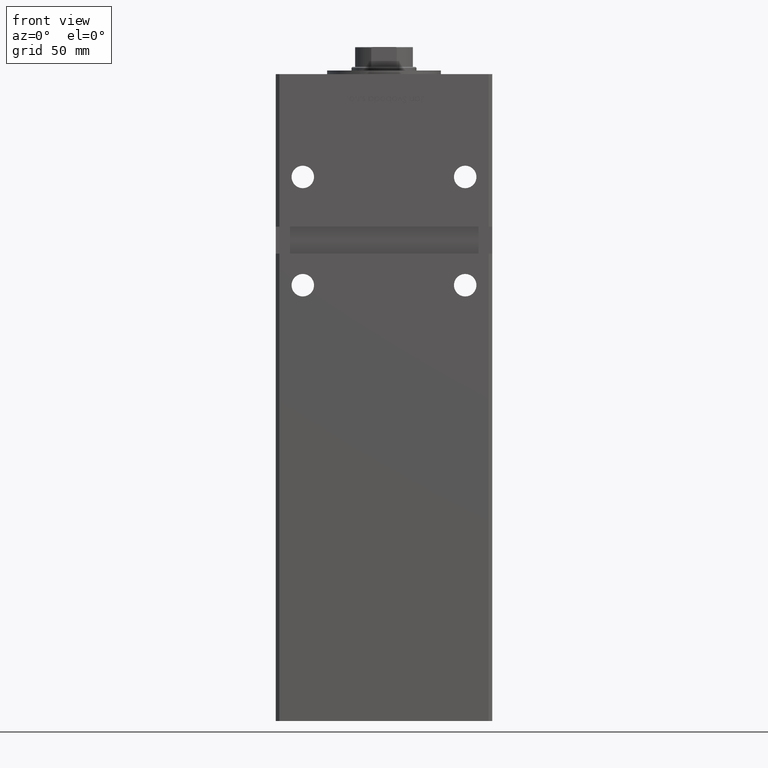
[diagram: clean part render]
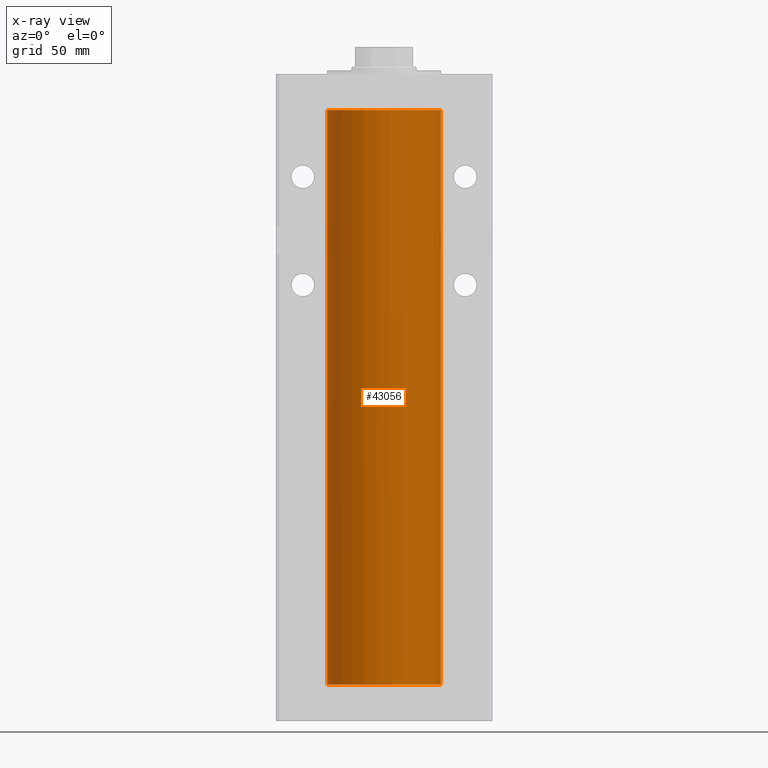
[diagram: x-ray — body ghosted, one internal face saturated and labeled with its STEP entity id]
A machine part, front view, then the same camera in x-ray: the body is ghosted and one INTERNAL B-rep face — a face not visible from any outside direction — is saturated and labeled: STEP entity #43056.
In plain terms, the highlighted cylindrical surface (partial cylindrical patch) has radius 31.5 mm, axis along (-0, -0, -1).
Its self-contained STEP definition (entity closure, byte-faithful):
#150 = CIRCLE ( 'NONE', #48139, 31.50000000000000000 ) ;
#186 = VERTEX_POINT ( 'NONE', #14479 ) ;
#3143 = FACE_OUTER_BOUND ( 'NONE', #34514, .T. ) ;
#3609 = CIRCLE ( 'NONE', #40334, 31.50000000000000000 ) ;
#4764 = VECTOR ( 'NONE', #32526, 1000.000000000000000 ) ;
#5274 = ORIENTED_EDGE ( 'NONE', *, *, #18313, .T. ) ;
#5793 = DIRECTION ( 'NONE',  ( -0.000000000000000000, 0.000000000000000000, 1.000000000000000000 ) ) ;
#7325 = LINE ( 'NONE', #36553, #4764 ) ;
#8102 = VECTOR ( 'NONE', #9469, 1000.000000000000000 ) ;
#9469 = DIRECTION ( 'NONE',  ( -0.000000000000000000, -0.000000000000000000, -1.000000000000000000 ) ) ;
#11202 = CARTESIAN_POINT ( 'NONE',  ( -31.50000000000000000, 0.000000000000000000, 318.5000000000000000 ) ) ;
#14479 = CARTESIAN_POINT ( 'NONE',  ( 31.50000000000000000, 3.857637417314162689E-15, 318.5000000000000000 ) ) ;
#14963 = CARTESIAN_POINT ( 'NONE',  ( 0.000000000000000000, 0.000000000000000000, 318.5000000000000000 ) ) ;
#15412 = CARTESIAN_POINT ( 'NONE',  ( -31.50000000000000000, 0.000000000000000000, 0.000000000000000000 ) ) ;
#18313 = EDGE_CURVE ( 'NONE', #186, #28908, #21557, .T. ) ;
#20218 = VERTEX_POINT ( 'NONE', #11202 ) ;
#20842 = EDGE_CURVE ( 'NONE', #20218, #47183, #7325, .T. ) ;
#21557 = LINE ( 'NONE', #50247, #8102 ) ;
#23813 = DIRECTION ( 'NONE',  ( -0.000000000000000000, -0.000000000000000000, -1.000000000000000000 ) ) ;
#24850 = CARTESIAN_POINT ( 'NONE',  ( 0.000000000000000000, 0.000000000000000000, 318.5000000000000000 ) ) ;
#27314 = CYLINDRICAL_SURFACE ( 'NONE', #35287, 31.50000000000000000 ) ;
#28908 = VERTEX_POINT ( 'NONE', #42617 ) ;
#30750 = DIRECTION ( 'NONE',  ( 1.000000000000000000, 0.000000000000000000, 0.000000000000000000 ) ) ;
#32523 = ORIENTED_EDGE ( 'NONE', *, *, #40515, .F. ) ;
#32526 = DIRECTION ( 'NONE',  ( -0.000000000000000000, -0.000000000000000000, -1.000000000000000000 ) ) ;
#34514 = EDGE_LOOP ( 'NONE', ( #35833, #5274, #32523, #49478 ) ) ;
#35287 = AXIS2_PLACEMENT_3D ( 'NONE', #14963, #23813, #39109 ) ;
#35833 = ORIENTED_EDGE ( 'NONE', *, *, #39351, .T. ) ;
#36553 = CARTESIAN_POINT ( 'NONE',  ( -31.50000000000000000, 0.000000000000000000, 318.5000000000000000 ) ) ;
#37186 = DIRECTION ( 'NONE',  ( 1.000000000000000000, 0.000000000000000000, 0.000000000000000000 ) ) ;
#39109 = DIRECTION ( 'NONE',  ( -1.000000000000000000, 0.000000000000000000, 0.000000000000000000 ) ) ;
#39351 = EDGE_CURVE ( 'NONE', #20218, #186, #150, .T. ) ;
#40334 = AXIS2_PLACEMENT_3D ( 'NONE', #51914, #5793, #30750 ) ;
#40515 = EDGE_CURVE ( 'NONE', #47183, #28908, #3609, .T. ) ;
#42617 = CARTESIAN_POINT ( 'NONE',  ( 31.50000000000000000, 3.857637417314162689E-15, 0.000000000000000000 ) ) ;
#43056 = ADVANCED_FACE ( 'NONE', ( #3143 ), #27314, .F. ) ;
#47183 = VERTEX_POINT ( 'NONE', #15412 ) ;
#48139 = AXIS2_PLACEMENT_3D ( 'NONE', #24850, #49242, #37186 ) ;
#49242 = DIRECTION ( 'NONE',  ( -0.000000000000000000, 0.000000000000000000, 1.000000000000000000 ) ) ;
#49478 = ORIENTED_EDGE ( 'NONE', *, *, #20842, .F. ) ;
#50247 = CARTESIAN_POINT ( 'NONE',  ( 31.50000000000000000, 3.857637417314162689E-15, 318.5000000000000000 ) ) ;
#51914 = CARTESIAN_POINT ( 'NONE',  ( 0.000000000000000000, 0.000000000000000000, 0.000000000000000000 ) ) ;